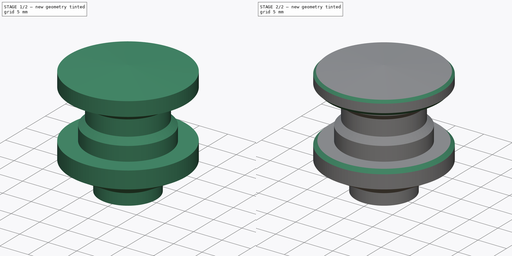
[diagram: build sequence overview — one tinted view per stage of 2, left to right]
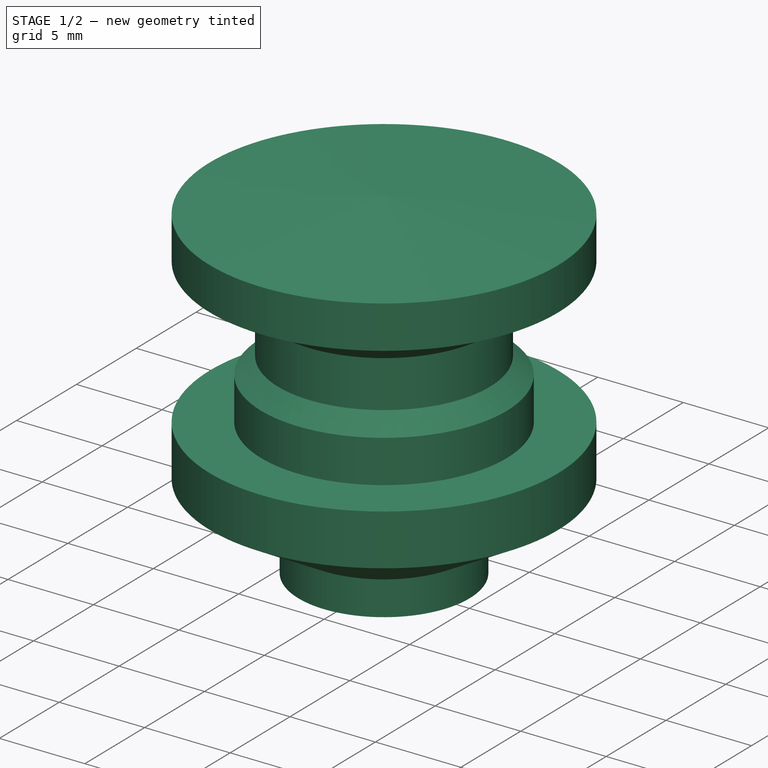
[diagram: stage 1 of 2 — iso view after this stage's code; geometry added in this stage tinted green]
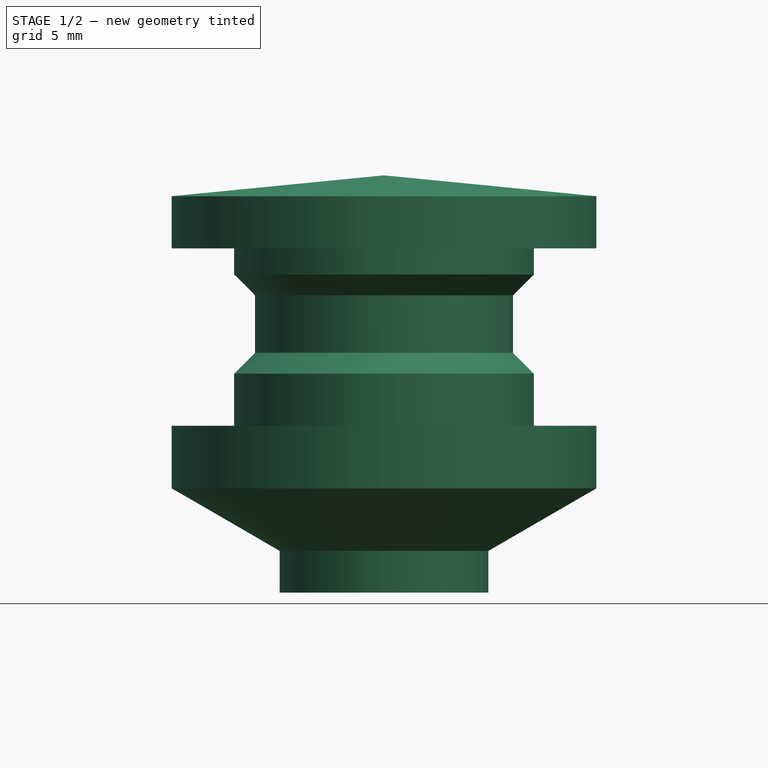
[diagram: stage 1 of 2 — front view after this stage's code; geometry added in this stage tinted green]
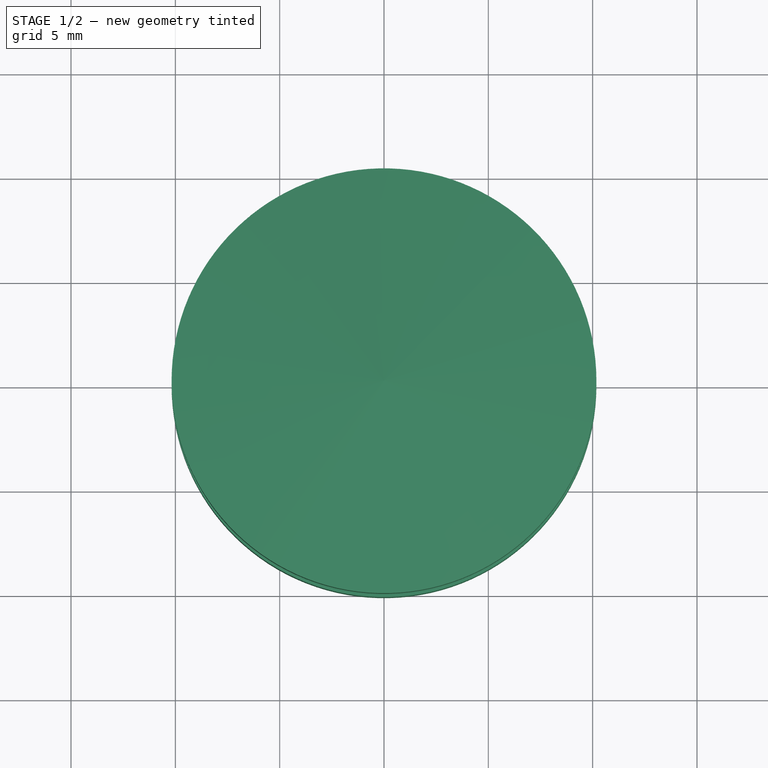
[diagram: stage 1 of 2 — top view after this stage's code; geometry added in this stage tinted green]
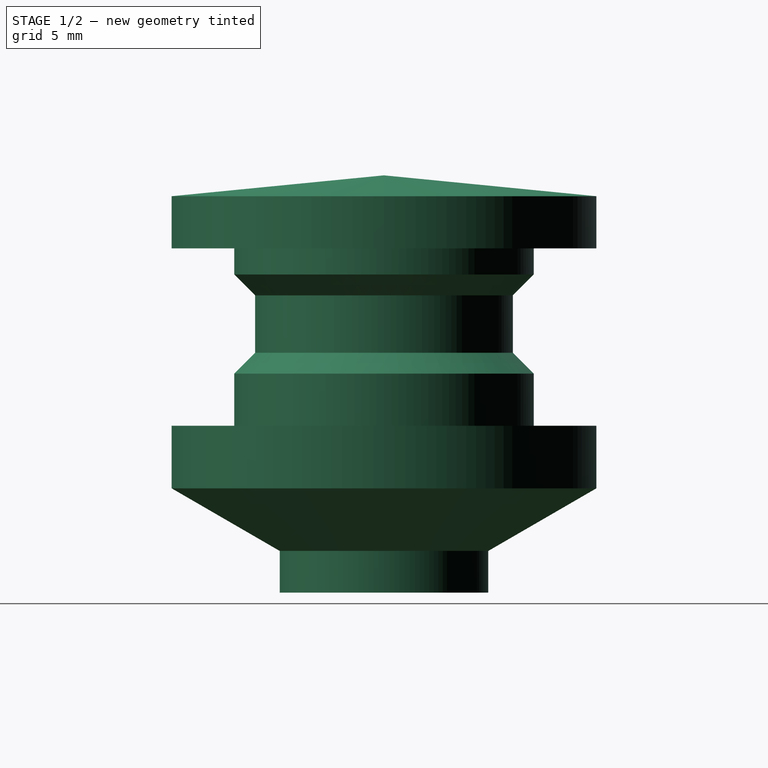
[diagram: stage 1 of 2 — right view after this stage's code; geometry added in this stage tinted green]
FCSTD DOCUMENT  (FreeCAD 0.14R3347 (Git))
Label: motor-roller
License: CC-BY 3.0
LicenseURL: http://creativecommons.org/licenses/by/3.0/
objects: Part::Feature×3, Sketcher::SketchObject×2, PartDesign::Chamfer×2, PartDesign::Revolution×1, PartDesign::Pocket×1
note: 11 computed .brp shape members not serialized (recipe doc carries the construction recipe); baked Part::Feature solids carry a one-line shape summary decoded from their .brp

FEATURE [Sketcher::SketchObject] Sketch
  Placement = pos=(0,0,0) rot=(1,0,0;1.5708rad)
  sketch-geometry (14):
    g0: LineSegment StartX=10.18 StartY=5 StartZ=0 EndX=10.18 EndY=8 EndZ=0
    g1: LineSegment StartX=10.18 StartY=8 StartZ=0 EndX=7.18 EndY=8 EndZ=0
    g2: LineSegment StartX=7.18 StartY=8 StartZ=0 EndX=7.18 EndY=10.5 EndZ=0
    g3: LineSegment StartX=7.18 StartY=10.5 StartZ=0 EndX=6.18 EndY=11.5 EndZ=0
    g4: LineSegment StartX=6.18 StartY=11.5 StartZ=0 EndX=6.18 EndY=14.25 EndZ=0
    g5: LineSegment StartX=6.18 StartY=14.25 StartZ=0 EndX=7.18 EndY=15.25 EndZ=0
    g6: LineSegment StartX=7.18 StartY=15.25 StartZ=0 EndX=7.18 EndY=16.5 EndZ=0
    g7: LineSegment StartX=7.18 StartY=16.5 StartZ=0 EndX=10.18 EndY=16.5 EndZ=0
    g8: LineSegment StartX=10.18 StartY=16.5 StartZ=0 EndX=10.18 EndY=19 EndZ=0
    g9: LineSegment StartX=10.18 StartY=19 StartZ=0 EndX=0 EndY=20 EndZ=0
    g10: LineSegment StartX=0 StartY=20 StartZ=0 EndX=0 EndY=0 EndZ=0
    g11: LineSegment StartX=0 StartY=0 StartZ=0 EndX=5 EndY=0 EndZ=0
    g12: LineSegment StartX=10.18 StartY=5 StartZ=0 EndX=5 EndY=2 EndZ=0
    g13: LineSegment StartX=5 StartY=2 StartZ=0 EndX=5 EndY=0 EndZ=0
  constraints (42):
    c: Vertical(g0)
    c: Coincident(g0,g1)
    c: Horizontal(g1)
    c: Coincident(g1,g2)
    c: Vertical(g2)
    c: Coincident(g2,g3)
    c: Coincident(g3,g4)
    c: Coincident(g4,g5)
    c: Coincident(g5,g6)
    c: Coincident(g6,g7)
    c: Horizontal(g7)
    c: Coincident(g7,g8)
    c: Coincident(g8,g9)
    c: Coincident(g9,g10)
    c: Vertical(g10)
    c: Coincident(g10,g-1)
    c: DistanceY(g2,g1) = -2.5
    c: DistanceY(g0,g7) = 8.5
    c: Vertical(g6)
    c: DistanceY(g5,g6) = 1.25
    c: Vertical(g4)
    c: Angle(g3) = 2.35619
    c: Angle(g5) = 0.785398
    c: DistanceX(g6,g9) = -7.18
    c: DistanceX(g2,g9) = -7.18
    c: DistanceX(g6,g8) = 3
    c: DistanceX(g4,g5) = 1
    c: DistanceX(g1,g0) = 3
    c: Coincident(g11,g-1)
    c: Horizontal(g11)
    c: Coincident(g12,g0)
    c: Coincident(g13,g12)
    c: PointOnObject(g13,g-1)
    c: Vertical(g13)
    c: Distance(g0) = 3
    c: DistanceX(g-1,g11) = 5
    c: Coincident(g13,g11)
    c: DistanceY(g12,g11) = -2
    c: DistanceY(g0,g11) = -8
    c: DistanceY(g10) = -20
    c: DistanceY(g8) = 2.5
    c: Equal(g7,g1)
FEATURE [PartDesign::Revolution] Revolution
  Angle = 360
  Axis = (0,0,1)
  Base = (0,0,0)
  Placement = pos=(0,0,0) rot=(1,0,0;1.5708rad)
  ReferenceAxis = -> Sketch [V_Axis]
  Reversed = true
  Sketch = -> Sketch
FEATURE [Sketcher::SketchObject] Sketch001
  Placement = pos=(0,0,0) rot=(1,0,0;3.14159rad)
  Support = -> Revolution [Face11]
  sketch-geometry (2):
    g0: ArcOfCircle CenterX=0 CenterY=0 CenterZ=0 NormalX=0 NormalY=0 NormalZ=1 Radius=2.65 StartAngle=2.28637 EndAngle=7.13841
    g1: LineSegment StartX=-1.73853 StartY=2 StartZ=0 EndX=1.73853 EndY=2 EndZ=0
  constraints (8):
    c: Radius(g0) = 2.65
    c: Coincident(g0,g-1)
    c: Horizontal(g1)
    c: Symmetric(g1,g1,g-2)
    c: DistanceY(g-1,g1) = 2
    c: PointOnObject(g0,g1)
    c: PointOnObject(g0,g1)
    c: Coincident(g1,g0)
FEATURE [PartDesign::Pocket] Pocket
  Length = 18.2
  Placement = pos=(0,0,0) rot=(1,0,0;1.5708rad)
  Sketch = -> Sketch001
  Type = 0
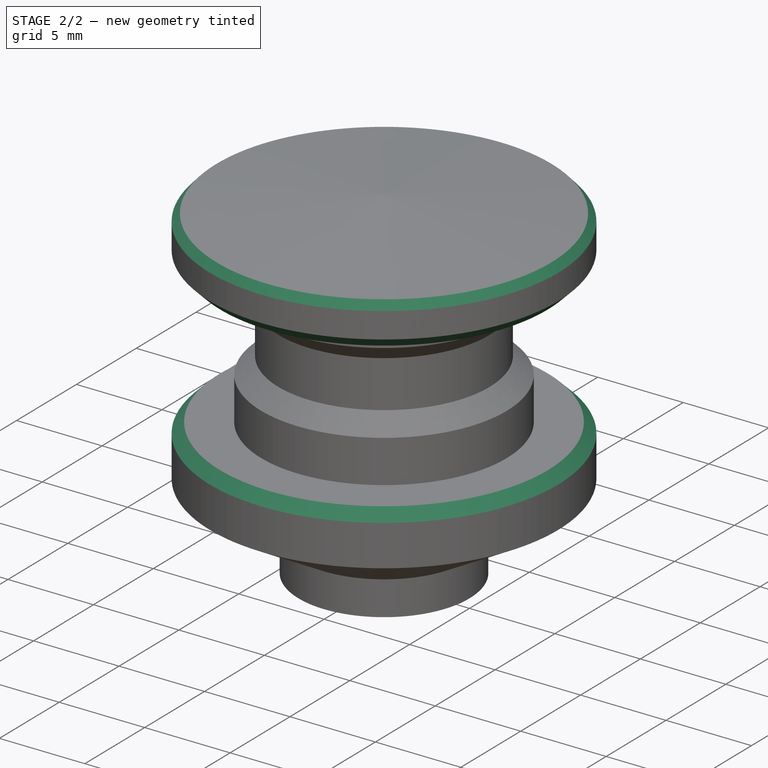
[diagram: stage 2 of 2 — iso view after this stage's code; geometry added in this stage tinted green]
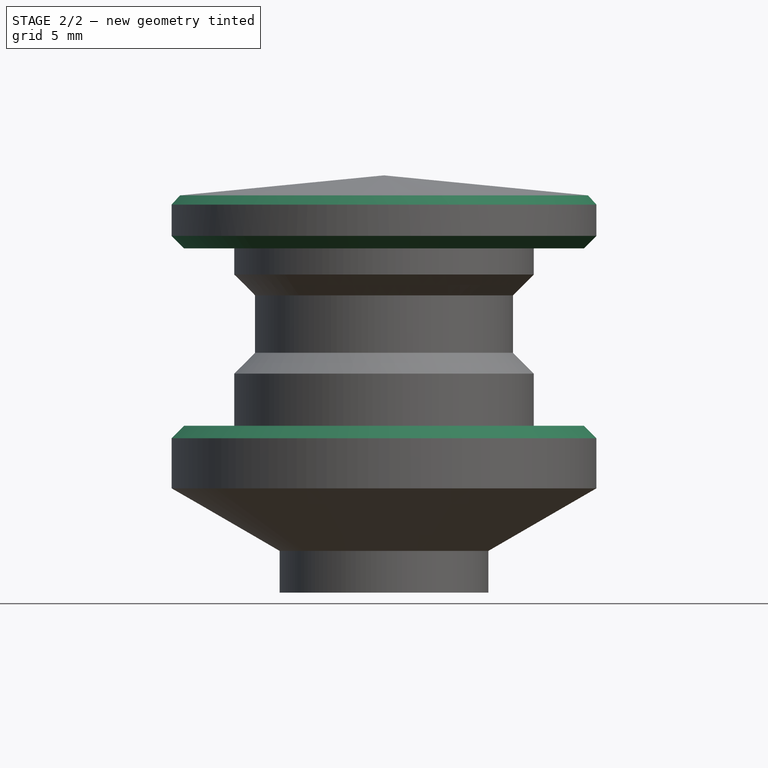
[diagram: stage 2 of 2 — front view after this stage's code; geometry added in this stage tinted green]
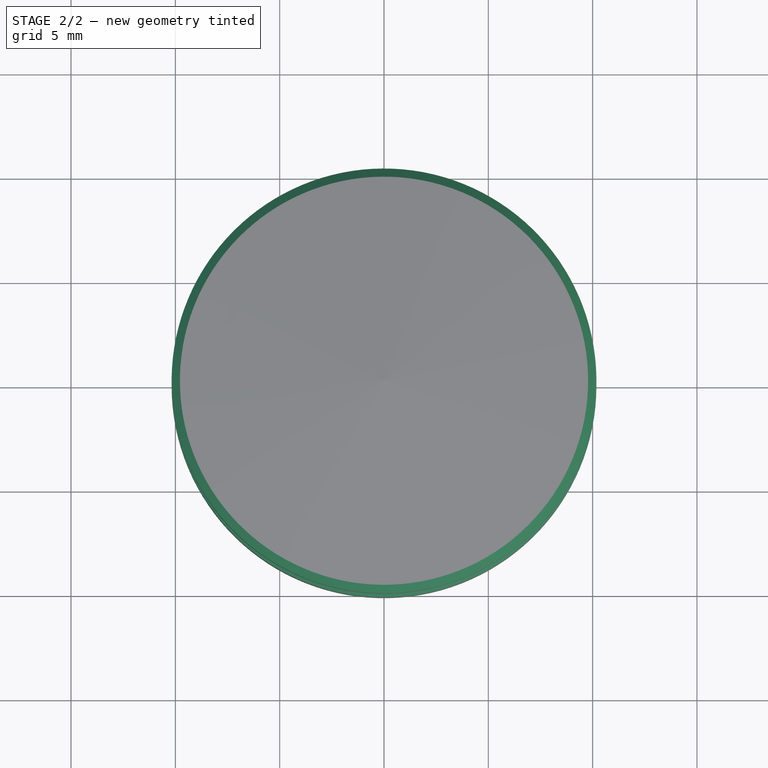
[diagram: stage 2 of 2 — top view after this stage's code; geometry added in this stage tinted green]
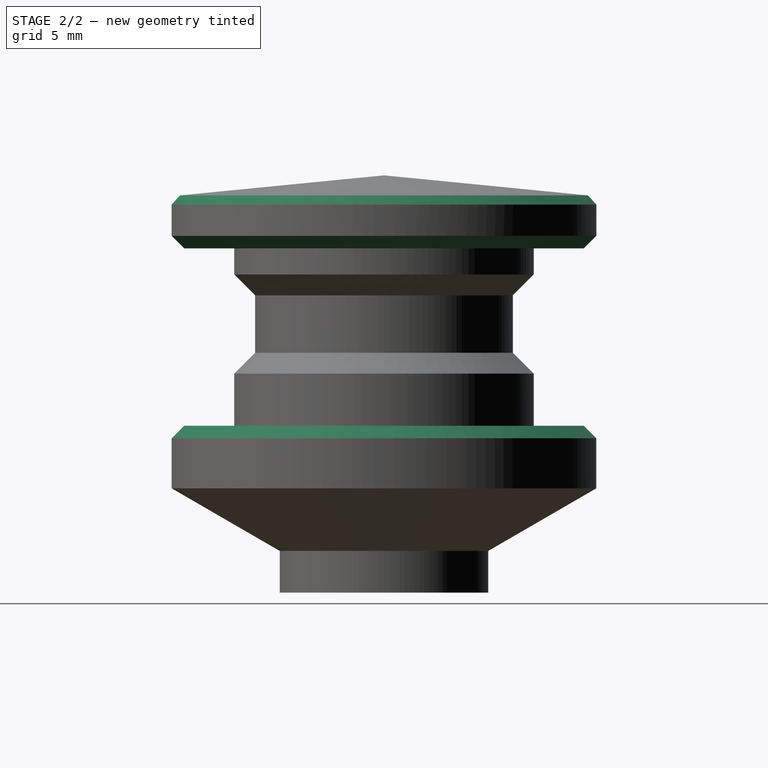
[diagram: stage 2 of 2 — right view after this stage's code; geometry added in this stage tinted green]
FEATURE [PartDesign::Chamfer] Chamfer
  Base = -> Pocket [Edge25,Edge2]
  Placement = pos=(0,0,0) rot=(1,0,0;1.5708rad)
  Size = 0.6
FEATURE [PartDesign::Chamfer] Chamfer001
  Base = -> Chamfer [Edge31]
  Placement = pos=(0,0,0) rot=(1,0,0;1.5708rad)
  Size = 0.4
FEATURE [Part::Feature] Chamfer001001  label="Simple Copy"
  Placement = pos=(0,0,0) rot=(1,0,0;1.5708rad)
  shape: bbox 25.39 x 27.8 x 20 mm, 19 faces (baked)
FEATURE [Part::Feature] Chamfer001001001  label="Motor Roller Refined"
  shape: bbox 25.39 x 27.8 x 20 mm, 19 faces (baked)
FEATURE [Part::Feature] Chamfer001001001_solid  label="Motor Roller Refined (Solid)"
  shape: bbox 25.39 x 27.8 x 20 mm, 19 faces (baked)
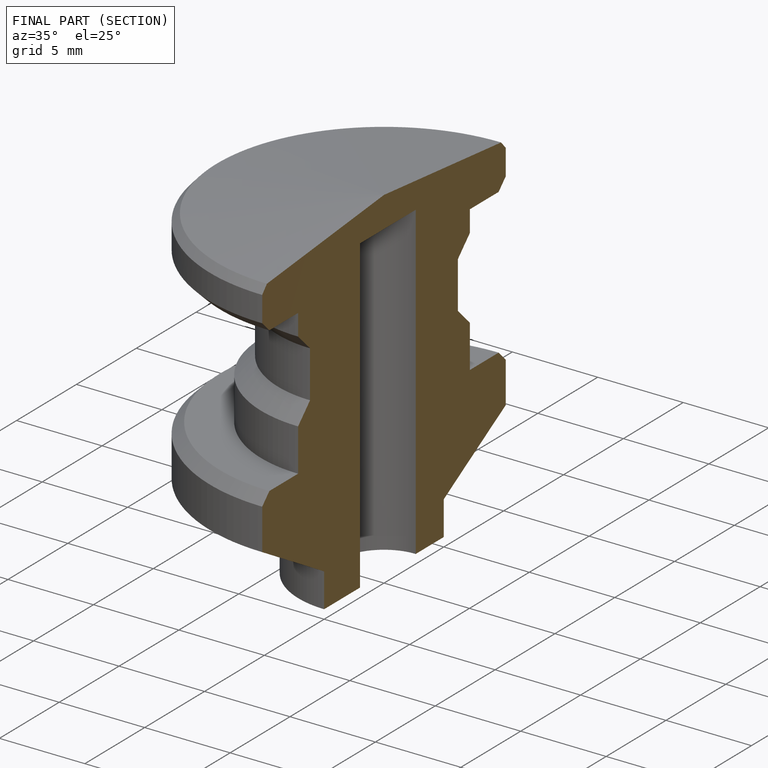
[diagram: finished part — half-section view (interior)]
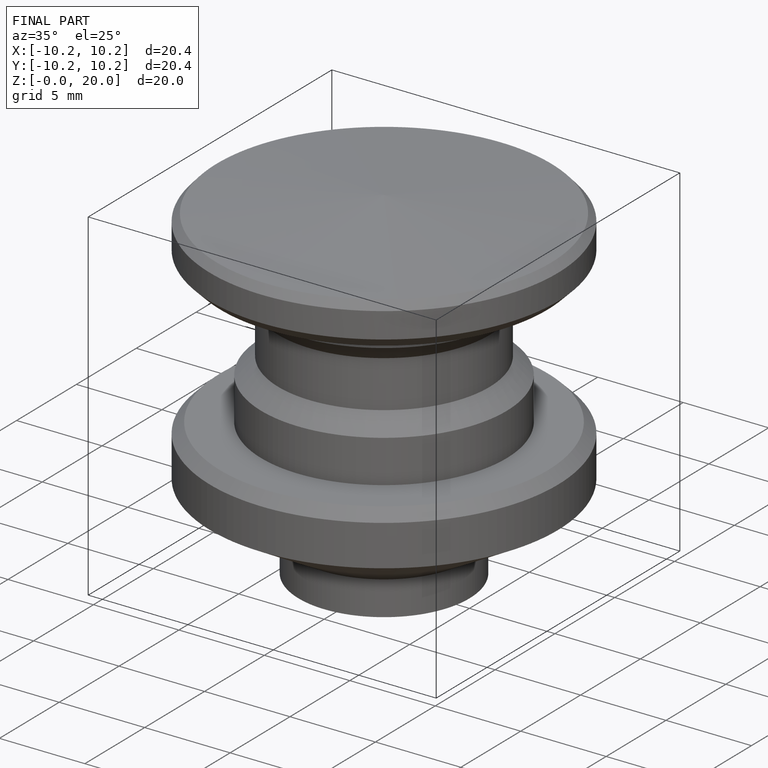
[diagram: finished part — iso view with bounding-box wireframe]
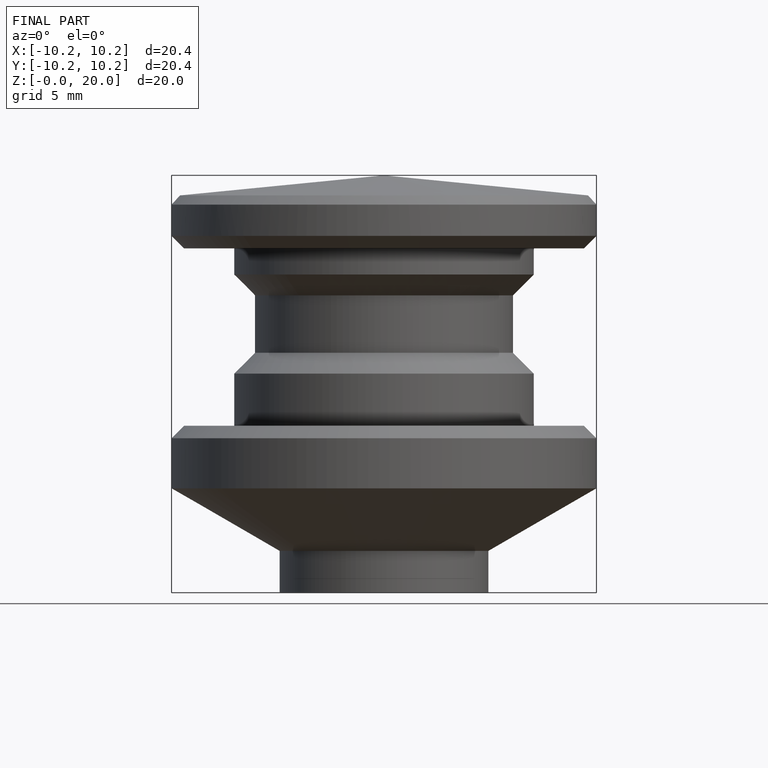
[diagram: finished part — front view with bounding-box wireframe]
